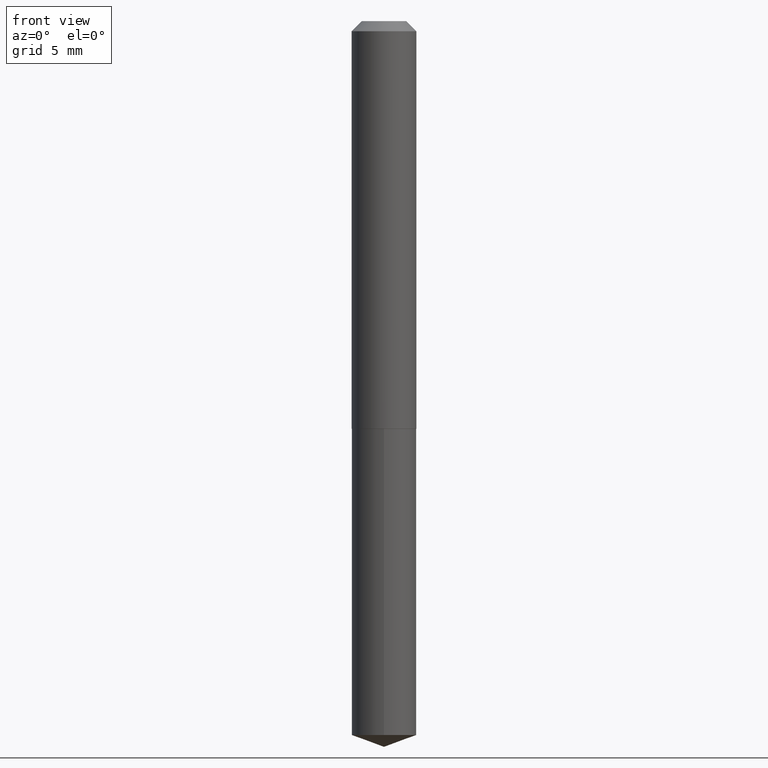
[diagram: clean part render]
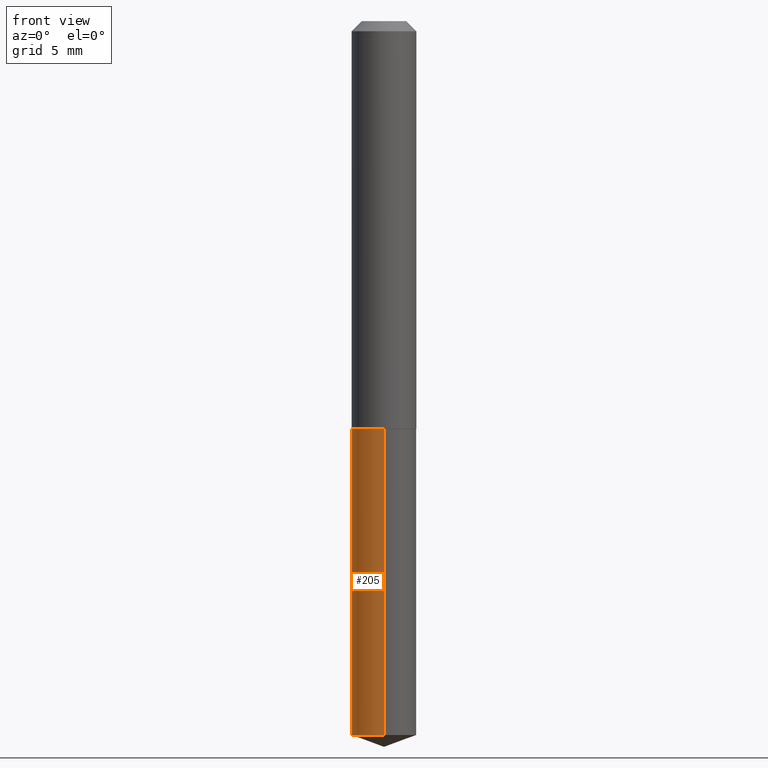
[diagram: same view with one face highlighted and labeled with its STEP entity id]
A machine part, front view. The second image highlights one B-rep face of the part: STEP entity #205.
In plain terms, the highlighted cylindrical surface (edge-blend (fillet) strip) has radius 2.5527 mm, axis along (-0, 0, 1).
Its self-contained STEP definition (entity closure, byte-faithful):
#8 = ORIENTED_EDGE ( 'NONE', *, *, #114, .T. ) ;
#28 = ORIENTED_EDGE ( 'NONE', *, *, #68, .T. ) ;
#45 = CARTESIAN_POINT ( 'NONE',  ( 7.140954494389547664E-16, 0.1004999999999922899, -2.213420991456247044 ) ) ;
#48 = DIRECTION ( 'NONE',  ( -6.982962677686265922E-15, -1.000000000000000000, 2.718256710113694497E-15 ) ) ;
#57 = DIRECTION ( 'NONE',  ( -2.445407863595241292E-29, 3.491568612100512464E-15, 1.000000000000000000 ) ) ;
#58 = VERTEX_POINT ( 'NONE', #45 ) ;
#68 = EDGE_CURVE ( 'NONE', #72, #298, #256, .T. ) ;
#72 = VERTEX_POINT ( 'NONE', #75 ) ;
#74 = DIRECTION ( 'NONE',  ( -6.982962677686265922E-15, -1.000000000000000000, 2.718256710113694497E-15 ) ) ;
#75 = CARTESIAN_POINT ( 'NONE',  ( -7.017877491074157398E-16, -0.1005000000000077498, -2.213420991456246600 ) ) ;
#77 = VECTOR ( 'NONE', #386, 39.37007874015748143 ) ;
#84 = AXIS2_PLACEMENT_3D ( 'NONE', #278, #312, #48 ) ;
#89 = FACE_OUTER_BOUND ( 'NONE', #105, .T. ) ;
#103 = CIRCLE ( 'NONE', #212, 0.1005000000000000060 ) ;
#105 = EDGE_LOOP ( 'NONE', ( #158, #8, #28, #244 ) ) ;
#114 = EDGE_CURVE ( 'NONE', #58, #72, #253, .T. ) ;
#121 = VERTEX_POINT ( 'NONE', #326 ) ;
#154 = VECTOR ( 'NONE', #257, 39.37007874015748143 ) ;
#158 = ORIENTED_EDGE ( 'NONE', *, *, #211, .F. ) ;
#194 = EDGE_CURVE ( 'NONE', #121, #298, #103, .T. ) ;
#205 = ADVANCED_FACE ( 'NONE', ( #89 ), #263, .T. ) ;
#211 = EDGE_CURVE ( 'NONE', #58, #121, #249, .T. ) ;
#212 = AXIS2_PLACEMENT_3D ( 'NONE', #292, #57, #265 ) ;
#216 = DIRECTION ( 'NONE',  ( -2.445407863595241292E-29, 3.491568612100512464E-15, 1.000000000000000000 ) ) ;
#240 = CARTESIAN_POINT ( 'NONE',  ( -7.017877491074388140E-16, -0.1005000000000044191, -1.263499999999999845 ) ) ;
#244 = ORIENTED_EDGE ( 'NONE', *, *, #194, .F. ) ;
#249 = LINE ( 'NONE', #329, #77 ) ;
#253 = CIRCLE ( 'NONE', #84, 0.1005000000000000060 ) ;
#256 = LINE ( 'NONE', #371, #154 ) ;
#257 = DIRECTION ( 'NONE',  ( -2.445407863595241292E-29, 3.491568612100512070E-15, 1.000000000000000000 ) ) ;
#263 = CYLINDRICAL_SURFACE ( 'NONE', #314, 0.1005000000000000060 ) ;
#265 = DIRECTION ( 'NONE',  ( -6.982962677686265922E-15, -1.000000000000000000, 2.718256710113694497E-15 ) ) ;
#278 = CARTESIAN_POINT ( 'NONE',  ( 5.412794098916213992E-29, -7.728200989372345435E-15, -2.213420991456246600 ) ) ;
#292 = CARTESIAN_POINT ( 'NONE',  ( 3.089849836614920220E-29, -4.411486671628314645E-15, -1.263500000000000068 ) ) ;
#298 = VERTEX_POINT ( 'NONE', #240 ) ;
#312 = DIRECTION ( 'NONE',  ( -2.445407863595241292E-29, 3.491568612100512464E-15, 1.000000000000000000 ) ) ;
#314 = AXIS2_PLACEMENT_3D ( 'NONE', #348, #216, #74 ) ;
#326 = CARTESIAN_POINT ( 'NONE',  ( 7.140954494389548650E-16, 0.1004999999999956067, -1.263500000000000290 ) ) ;
#329 = CARTESIAN_POINT ( 'NONE',  ( 7.140954494389315936E-16, 0.1004999999999956067, -1.263500000000000290 ) ) ;
#348 = CARTESIAN_POINT ( 'NONE',  ( 3.089849836614920220E-29, -4.411486671628314645E-15, -1.263500000000000068 ) ) ;
#371 = CARTESIAN_POINT ( 'NONE',  ( -7.017877491074388140E-16, -0.1005000000000044191, -1.263499999999999845 ) ) ;
#386 = DIRECTION ( 'NONE',  ( -2.445407863595241292E-29, 3.491568612100512070E-15, 1.000000000000000000 ) ) ;